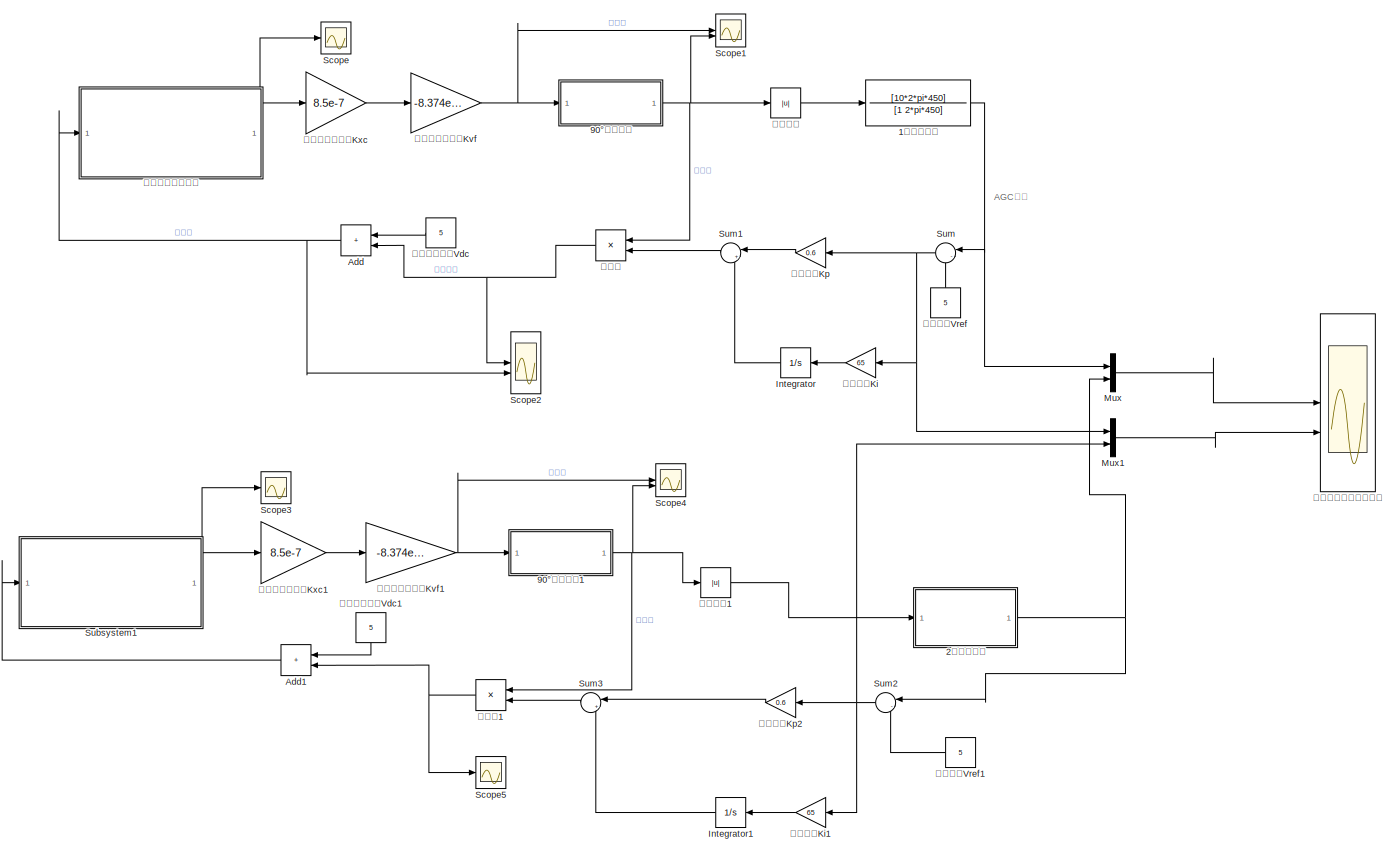
[diagram: root canvas - part 1/2, most of the canvas]
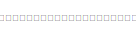
[diagram: root canvas - part 2/2, top left region]
MODEL slx_91cb9d74dd3d
KIND model
CONFIG AbsTol = auto
CONFIG EnableMultiTasking = off
CONFIG FixedStep = auto
CONFIG MaxStep = 1e-5
CONFIG MinStep = auto
CONFIG RelTol = 1e-3
CONFIG SampleTimeConstraint = Unconstrained
CONFIG SolverName = VariableStepAuto
CONFIG StartTime = 0.0
CONFIG StopTime = 3
BLOCK [TransferFcn] 1阶低通滤波
  Denominator = [1 2*pi*450]
  Numerator = [10*2*pi*450]
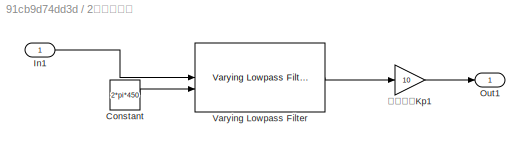
BLOCK [SubSystem] 2阶低通滤波
BLOCK [Constant] 2阶低通滤波/Constant
  Value = 2*pi*450
BLOCK [Inport] 2阶低通滤波/In1
BLOCK [Outport] 2阶低通滤波/Out1
BLOCK [Reference] 2阶低通滤波/Varying Lowpass Filter  REF=cstblocks/Linear Parameter Varying/Varying Lowpass Filter
  SourceBlock = cstblocks/Linear Parameter Varying/Varying Lowpass Filter
  SourceType = Varying Lowpass Filter
BLOCK [Gain] 2阶低通滤波/比例系数Kp1
  Gain = 10
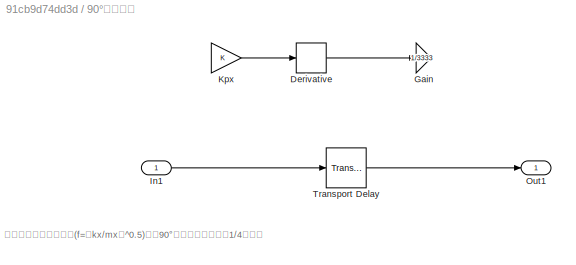
BLOCK [SubSystem] 90°移相模块
BLOCK [Derivative] 90°移相模块/Derivative
  Commented = on
BLOCK [Gain] 90°移相模块/Gain
  Commented = through
  Gain = 1/3333
BLOCK [Inport] 90°移相模块/In1
BLOCK [Gain] 90°移相模块/Kpx
  Commented = on
BLOCK [Outport] 90°移相模块/Out1
BLOCK [TransportDelay] 90°移相模块/Transport Delay
  DelayTime = 1/(3489.44*4)
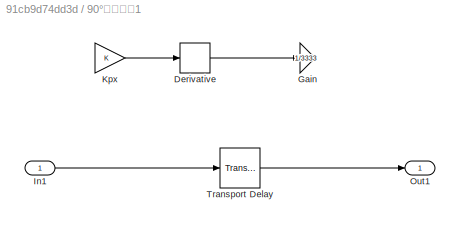
BLOCK [SubSystem] 90°移相模块1
BLOCK [Derivative] 90°移相模块1/Derivative
  Commented = on
BLOCK [Gain] 90°移相模块1/Gain
  Commented = through
  Gain = 1/3333
BLOCK [Inport] 90°移相模块1/In1
BLOCK [Gain] 90°移相模块1/Kpx
  Commented = on
BLOCK [Outport] 90°移相模块1/Out1
BLOCK [TransportDelay] 90°移相模块1/Transport Delay
  DelayTime = 1/(3489.44*4)
BLOCK [Sum] Add
  IconShape = rectangular
  NameLocation = top
BLOCK [Sum] Add1
  IconShape = rectangular
  NameLocation = top
BLOCK [Integrator] Integrator
  NameLocation = top
BLOCK [Integrator] Integrator1
  NameLocation = top
BLOCK [Mux] Mux
  DisplayOption = bar
  Inputs = 2
BLOCK [Mux] Mux1
  DisplayOption = bar
  Inputs = 2
BLOCK [Scope] Scope
  Floating = off
  NumInputPorts = 1
  ScopeSpecificationString = Simulink.scopes.TimeScopeBlockCfg('CurrentConfiguration', extmgr.ConfigurationSet(extmgr.Configuration('Core','General UI',true),extmgr.Configuration('Core','Source UI',true),extmgr.Configuration('Sources','WiredSimulink',true),extmgr.Configuration('Visuals','Time Domain',true,'SerializedDisplays',{struct('MinYLimReal','-0.000005','MaxYLimReal','0.000005','YLabelReal','','MinYLimMag','0.000000','M...<+1439ch>
BLOCK [Scope] Scope1
  Floating = off
  NumInputPorts = 2
  ScopeSpecificationString = Simulink.scopes.TimeScopeBlockCfg('CurrentConfiguration', extmgr.ConfigurationSet(extmgr.Configuration('Core','General UI',true,'FigureColor',[1 1 1]),extmgr.Configuration('Core','Source UI',true),extmgr.Configuration('Sources','WiredSimulink',true,'DataLoggingVariableName','ScopeData1'),extmgr.Configuration('Visuals','Time Domain',true,'SerializedDisplays',{struct('MinYLimReal','-3.68468','MaxYLi...<+2399ch>
BLOCK [Scope] Scope2
  Floating = off
  NumInputPorts = 2
  ScopeSpecificationString = Simulink.scopes.TimeScopeBlockCfg('CurrentConfiguration', extmgr.ConfigurationSet(extmgr.Configuration('Core','General UI',true),extmgr.Configuration('Core','Source UI',true),extmgr.Configuration('Sources','WiredSimulink',true,'DataLoggingVariableName','ScopeData5'),extmgr.Configuration('Visuals','Time Domain',true,'SerializedDisplays',{struct('MinYLimReal','-28.42323','MaxYLimReal','28.33405','YL...<+2134ch>
BLOCK [Scope] Scope3
  Floating = off
  NumInputPorts = 1
  ScopeSpecificationString = Simulink.scopes.TimeScopeBlockCfg('CurrentConfiguration', extmgr.ConfigurationSet(extmgr.Configuration('Core','General UI',true),extmgr.Configuration('Core','Source UI',true),extmgr.Configuration('Sources','WiredSimulink',true,'DataLoggingVariableName','ScopeData3'),extmgr.Configuration('Visuals','Time Domain',true,'SerializedDisplays',{struct('MinYLimReal','-0.0000024','MaxYLimReal','0.0000015','...<+1486ch>
BLOCK [Scope] Scope4
  Floating = off
  NumInputPorts = 2
  ScopeSpecificationString = Simulink.scopes.TimeScopeBlockCfg('CurrentConfiguration', extmgr.ConfigurationSet(extmgr.Configuration('Core','General UI',true,'FigureColor',[1 1 1]),extmgr.Configuration('Core','Source UI',true),extmgr.Configuration('Sources','WiredSimulink',true,'DataLoggingVariableName','ScopeData4'),extmgr.Configuration('Visuals','Time Domain',true,'SerializedDisplays',{struct('MinYLimReal','-1.02296','MaxYLi...<+1705ch>
BLOCK [Scope] Scope5
  Floating = off
  NumInputPorts = 1
  ScopeSpecificationString = Simulink.scopes.TimeScopeBlockCfg('CurrentConfiguration', extmgr.ConfigurationSet(extmgr.Configuration('Core','General UI',true),extmgr.Configuration('Core','Source UI',true),extmgr.Configuration('Sources','WiredSimulink',true,'DataLoggingVariableName','ScopeData6'),extmgr.Configuration('Visuals','Time Domain',true,'SerializedDisplays',{struct('MinYLimReal','-0.000005','MaxYLimReal','0.000005','YL...<+1478ch>
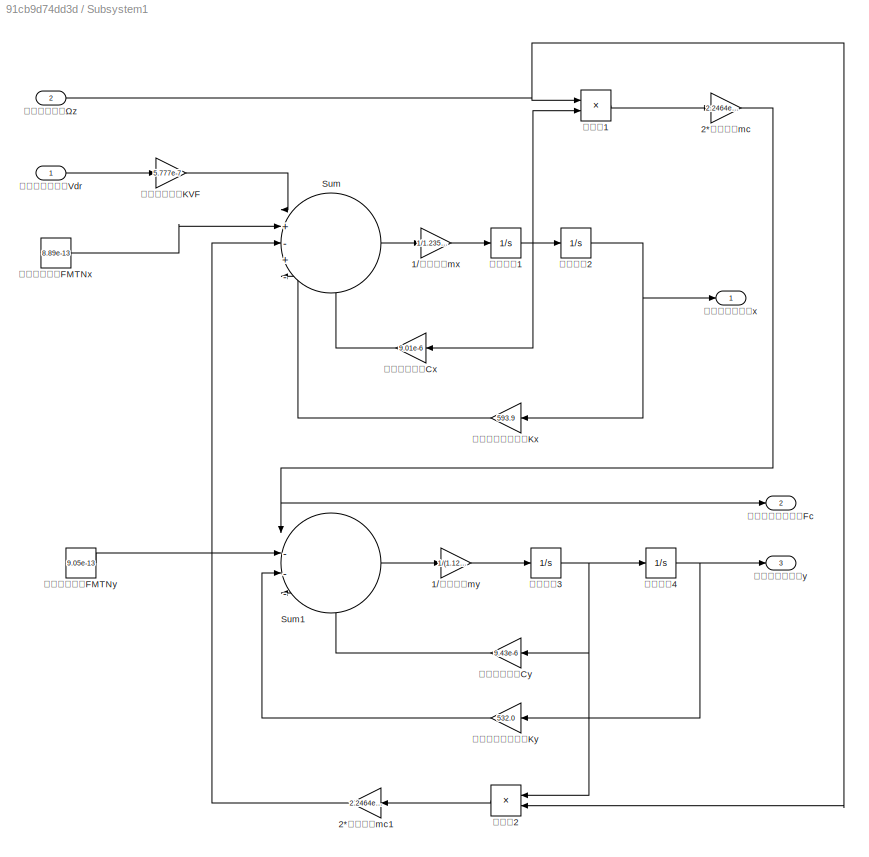
BLOCK [SubSystem] Subsystem1
BLOCK [Gain] Subsystem1/1//检测质量my
  Gain = 1/(1.1232e-6)
BLOCK [Gain] Subsystem1/1//驱动质量mx
  Gain = 1/1.2355e-6
BLOCK [Gain] Subsystem1/2*敏感质量mc
  Gain = 2.2464e-6
BLOCK [Gain] Subsystem1/2*敏感质量mc1
  Gain = 2.2464e-6
  NameLocation = top
BLOCK [Sum] Subsystem1/Sum
  Inputs = |+-+--
BLOCK [Sum] Subsystem1/Sum1
  Inputs = |----
BLOCK [Product] Subsystem1/乘法器1
BLOCK [Product] Subsystem1/乘法器2
  NameLocation = top
BLOCK [Constant] Subsystem1/机械热噪声：FMTNx
  Value = 8.89e-13
BLOCK [Constant] Subsystem1/机械热噪声：FMTNy
  Value = 9.05e-13
BLOCK [Gain] Subsystem1/检测弹性刚度系数Ky
  Gain = 532.0
  NameLocation = top
BLOCK [Gain] Subsystem1/检测阻尼系数Cy
  Gain = 9.43e-6
  NameLocation = top
BLOCK [Integrator] Subsystem1/积分环节1
BLOCK [Integrator] Subsystem1/积分环节2
BLOCK [Integrator] Subsystem1/积分环节3
BLOCK [Integrator] Subsystem1/积分环节4
BLOCK [Inport] Subsystem1/输入：角速度Ωz
  Port = 2
BLOCK [Inport] Subsystem1/输入：驱动电压Vdr
BLOCK [Outport] Subsystem1/输出：哥氏力观测Fc
  Port = 2
BLOCK [Outport] Subsystem1/输出：检测位移y
  Port = 3
BLOCK [Outport] Subsystem1/输出：驱动位移x
BLOCK [Gain] Subsystem1/驱动力矩器：KVF
  Gain = 5.777e-7
BLOCK [Gain] Subsystem1/驱动弹性刚度系数Kx
  Gain = 593.9
  NameLocation = top
BLOCK [Gain] Subsystem1/驱动阻尼系数Cx
  Gain = 9.01e-6
  NameLocation = top
BLOCK [Sum] Sum
  Inputs = |-+
  NameLocation = top
BLOCK [Sum] Sum1
  Inputs = |++
  NameLocation = top
BLOCK [Sum] Sum2
  Inputs = |-+
  NameLocation = top
BLOCK [Sum] Sum3
  Inputs = |++
  NameLocation = top
BLOCK [Scope] 一阶二阶低通滤波对比
  Floating = off
  NumInputPorts = 2
  ScopeSpecificationString = Simulink.scopes.TimeScopeBlockCfg('CurrentConfiguration', extmgr.ConfigurationSet(extmgr.Configuration('Core','General UI',true),extmgr.Configuration('Core','Source UI',true),extmgr.Configuration('Sources','WiredSimulink',true,'DataLoggingVariableName','ScopeData2'),extmgr.Configuration('Visuals','Time Domain',true,'SerializedDisplays',{struct('MinYLimReal','4.97527','MaxYLimReal','5.03143','YLabe...<+2213ch>
BLOCK [Gain] 位移电容转换：Kxc
  Gain = 8.5e-7
BLOCK [Gain] 位移电容转换：Kxc1
  Gain = 8.5e-7
BLOCK [Abs] 全波整流
  SaturateOnIntegerOverflow = off
BLOCK [Abs] 全波整流1
  SaturateOnIntegerOverflow = off
BLOCK [Gain] 比例系数Kp
  Gain = 0.6
  NameLocation = top
BLOCK [Gain] 比例系数Kp2
  Gain = 0.6
  NameLocation = top
BLOCK [Constant] 电压基准Vref
  Value = 5
BLOCK [Constant] 电压基准Vref1
  NameLocation = top
  Value = 5
BLOCK [Gain] 电容电压转换：Kvf
  Gain = -8.374e11
BLOCK [Gain] 电容电压转换：Kvf1
  Gain = -8.374e11
BLOCK [Constant] 直流驱动电压Vdc
  NameLocation = right
  Value = 5
BLOCK [Constant] 直流驱动电压Vdc1
  NameLocation = right
  Value = 5
BLOCK [Gain] 积分系数Ki
  Gain = 65
  NameLocation = top
BLOCK [Gain] 积分系数Ki1
  Gain = 65
  NameLocation = top
BLOCK [Product] 调制器
BLOCK [Product] 调制器1
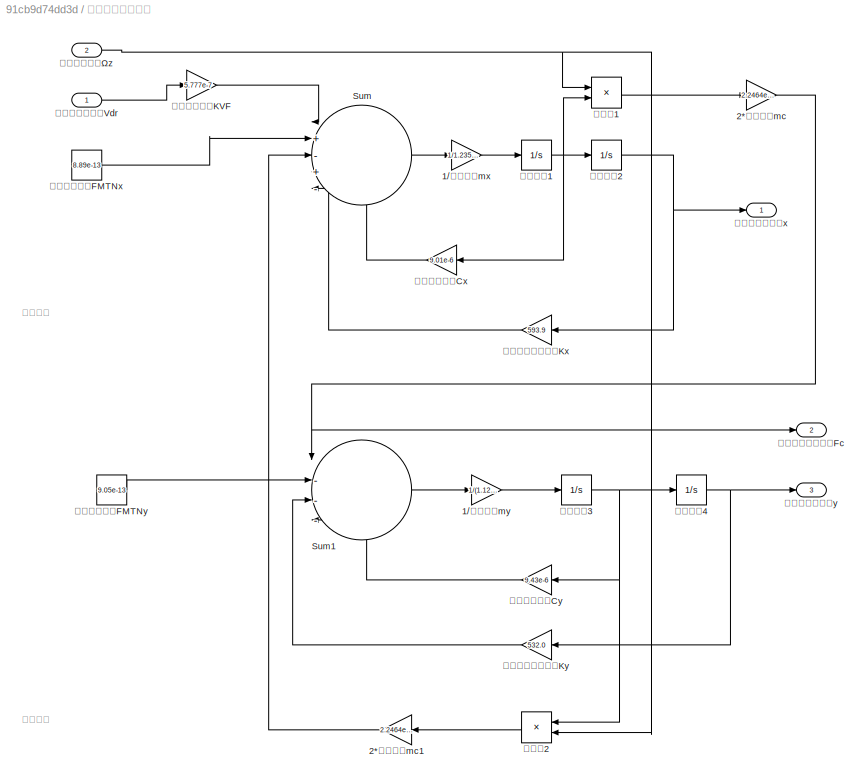
BLOCK [SubSystem] 陀螺结构等效模型
BLOCK [Gain] 陀螺结构等效模型/1//检测质量my
  Gain = 1/(1.1232e-6)
BLOCK [Gain] 陀螺结构等效模型/1//驱动质量mx
  Gain = 1/1.2355e-6
BLOCK [Gain] 陀螺结构等效模型/2*敏感质量mc
  Gain = 2.2464e-6
BLOCK [Gain] 陀螺结构等效模型/2*敏感质量mc1
  Gain = 2.2464e-6
  NameLocation = top
BLOCK [Sum] 陀螺结构等效模型/Sum
  Inputs = |+-+--
BLOCK [Sum] 陀螺结构等效模型/Sum1
  Inputs = |----
BLOCK [Product] 陀螺结构等效模型/乘法器1
BLOCK [Product] 陀螺结构等效模型/乘法器2
  NameLocation = top
BLOCK [Constant] 陀螺结构等效模型/机械热噪声：FMTNx
  Value = 8.89e-13
BLOCK [Constant] 陀螺结构等效模型/机械热噪声：FMTNy
  Value = 9.05e-13
BLOCK [Gain] 陀螺结构等效模型/检测弹性刚度系数Ky
  Gain = 532.0
  NameLocation = top
BLOCK [Gain] 陀螺结构等效模型/检测阻尼系数Cy
  Gain = 9.43e-6
  NameLocation = top
BLOCK [Integrator] 陀螺结构等效模型/积分环节1
BLOCK [Integrator] 陀螺结构等效模型/积分环节2
BLOCK [Integrator] 陀螺结构等效模型/积分环节3
BLOCK [Integrator] 陀螺结构等效模型/积分环节4
BLOCK [Inport] 陀螺结构等效模型/输入：角速度Ωz
  Port = 2
BLOCK [Inport] 陀螺结构等效模型/输入：驱动电压Vdr
BLOCK [Outport] 陀螺结构等效模型/输出：哥氏力观测Fc
  Port = 2
BLOCK [Outport] 陀螺结构等效模型/输出：检测位移y
  Port = 3
BLOCK [Outport] 陀螺结构等效模型/输出：驱动位移x
BLOCK [Gain] 陀螺结构等效模型/驱动力矩器：KVF
  Gain = 5.777e-7
BLOCK [Gain] 陀螺结构等效模型/驱动弹性刚度系数Kx
  Gain = 593.9
  NameLocation = top
BLOCK [Gain] 陀螺结构等效模型/驱动阻尼系数Cx
  Gain = 9.01e-6
  NameLocation = top
ANNOTATION (root): 仿真说明： 参考曹慧亮大论文的陀螺结构仿真
ANNOTATION (root): AGC控制
ANNOTATION 90°移相模块: 针对驱动模态谐振频率(f=（kx/mx）^0.5)进行90°精密移相，即延迟1/4个周期
ANNOTATION 陀螺结构等效模型: 检测模态
ANNOTATION 陀螺结构等效模型: 驱动模态
NET 1阶低通滤波:1 -> Mux:1, Sum:1
LINE 2阶低通滤波/Constant:1 -> 2阶低通滤波/Varying Lowpass Filter:2
LINE 2阶低通滤波/In1:1 -> 2阶低通滤波/Varying Lowpass Filter:1
LINE 2阶低通滤波/Varying Lowpass Filter:1 -> 2阶低通滤波/比例系数Kp1:1
LINE 2阶低通滤波/比例系数Kp1:1 -> 2阶低通滤波/Out1:1
NET 2阶低通滤波:1 -> Mux:2, Sum2:1
LINE 90°移相模块/Derivative:1 -> 90°移相模块/Gain:1
LINE 90°移相模块/In1:1 -> 90°移相模块/Transport Delay:1
LINE 90°移相模块/Kpx:1 -> 90°移相模块/Derivative:1
LINE 90°移相模块/Transport Delay:1 -> 90°移相模块/Out1:1
LINE 90°移相模块1/Derivative:1 -> 90°移相模块1/Gain:1
LINE 90°移相模块1/In1:1 -> 90°移相模块1/Transport Delay:1
LINE 90°移相模块1/Kpx:1 -> 90°移相模块1/Derivative:1
LINE 90°移相模块1/Transport Delay:1 -> 90°移相模块1/Out1:1
NET 90°移相模块1:1 -> Scope4:2, 全波整流1:1, 调制器1:1
NET 90°移相模块:1 -> Scope1:2, 全波整流:1, 调制器:1
LINE Add1:1 -> Subsystem1:1
NET Add:1 -> Scope2:2, 陀螺结构等效模型:1
LINE Integrator1:1 -> Sum3:2
LINE Integrator:1 -> Sum1:2
LINE Mux1:1 -> 一阶二阶低通滤波对比:2
LINE Mux:1 -> 一阶二阶低通滤波对比:1
LINE Subsystem1/1//检测质量my:1 -> Subsystem1/积分环节3:1
LINE Subsystem1/1//驱动质量mx:1 -> Subsystem1/积分环节1:1
LINE Subsystem1/2*敏感质量mc1:1 -> Subsystem1/Sum:3
NET Subsystem1/2*敏感质量mc:1 -> Subsystem1/Sum1:1, Subsystem1/输出：哥氏力观测Fc:1
LINE Subsystem1/Sum1:1 -> Subsystem1/1//检测质量my:1
LINE Subsystem1/Sum:1 -> Subsystem1/1//驱动质量mx:1
LINE Subsystem1/乘法器1:1 -> Subsystem1/2*敏感质量mc:1
LINE Subsystem1/乘法器2:1 -> Subsystem1/2*敏感质量mc1:1
LINE Subsystem1/机械热噪声：FMTNx:1 -> Subsystem1/Sum:2
LINE Subsystem1/机械热噪声：FMTNy:1 -> Subsystem1/Sum1:2
LINE Subsystem1/检测弹性刚度系数Ky:1 -> Subsystem1/Sum1:3
LINE Subsystem1/检测阻尼系数Cy:1 -> Subsystem1/Sum1:4
NET Subsystem1/积分环节1:1 -> Subsystem1/乘法器1:2, Subsystem1/积分环节2:1, Subsystem1/驱动阻尼系数Cx:1
NET Subsystem1/积分环节2:1 -> Subsystem1/输出：驱动位移x:1, Subsystem1/驱动弹性刚度系数Kx:1
NET Subsystem1/积分环节3:1 -> Subsystem1/乘法器2:1, Subsystem1/检测阻尼系数Cy:1, Subsystem1/积分环节4:1
NET Subsystem1/积分环节4:1 -> Subsystem1/检测弹性刚度系数Ky:1, Subsystem1/输出：检测位移y:1
NET Subsystem1/输入：角速度Ωz:1 -> Subsystem1/乘法器1:1, Subsystem1/乘法器2:2
LINE Subsystem1/输入：驱动电压Vdr:1 -> Subsystem1/驱动力矩器：KVF:1
LINE Subsystem1/驱动力矩器：KVF:1 -> Subsystem1/Sum:1
LINE Subsystem1/驱动弹性刚度系数Kx:1 -> Subsystem1/Sum:4
LINE Subsystem1/驱动阻尼系数Cx:1 -> Subsystem1/Sum:5
NET Subsystem1:1 -> Scope3:1, 位移电容转换：Kxc1:1
LINE Sum1:1 -> 调制器:2
NET Sum2:1 -> Mux1:2, 比例系数Kp2:1, 积分系数Ki1:1
LINE Sum3:1 -> 调制器1:2
NET Sum:1 -> Mux1:1, 比例系数Kp:1, 积分系数Ki:1
LINE 位移电容转换：Kxc1:1 -> 电容电压转换：Kvf1:1
LINE 位移电容转换：Kxc:1 -> 电容电压转换：Kvf:1
LINE 全波整流1:1 -> 2阶低通滤波:1
LINE 全波整流:1 -> 1阶低通滤波:1
LINE 比例系数Kp2:1 -> Sum3:1
LINE 比例系数Kp:1 -> Sum1:1
LINE 电压基准Vref1:1 -> Sum2:2
LINE 电压基准Vref:1 -> Sum:2
NET 电容电压转换：Kvf1:1 -> 90°移相模块1:1, Scope4:1
NET 电容电压转换：Kvf:1 -> 90°移相模块:1, Scope1:1
LINE 直流驱动电压Vdc1:1 -> Add1:1
LINE 直流驱动电压Vdc:1 -> Add:1
LINE 积分系数Ki1:1 -> Integrator1:1
LINE 积分系数Ki:1 -> Integrator:1
NET 调制器1:1 -> Add1:2, Scope5:1
NET 调制器:1 -> Add:2, Scope2:1
LINE 陀螺结构等效模型/1//检测质量my:1 -> 陀螺结构等效模型/积分环节3:1
LINE 陀螺结构等效模型/1//驱动质量mx:1 -> 陀螺结构等效模型/积分环节1:1
LINE 陀螺结构等效模型/2*敏感质量mc1:1 -> 陀螺结构等效模型/Sum:3
NET 陀螺结构等效模型/2*敏感质量mc:1 -> 陀螺结构等效模型/Sum1:1, 陀螺结构等效模型/输出：哥氏力观测Fc:1
LINE 陀螺结构等效模型/Sum1:1 -> 陀螺结构等效模型/1//检测质量my:1
LINE 陀螺结构等效模型/Sum:1 -> 陀螺结构等效模型/1//驱动质量mx:1
LINE 陀螺结构等效模型/乘法器1:1 -> 陀螺结构等效模型/2*敏感质量mc:1
LINE 陀螺结构等效模型/乘法器2:1 -> 陀螺结构等效模型/2*敏感质量mc1:1
LINE 陀螺结构等效模型/机械热噪声：FMTNx:1 -> 陀螺结构等效模型/Sum:2
LINE 陀螺结构等效模型/机械热噪声：FMTNy:1 -> 陀螺结构等效模型/Sum1:2
LINE 陀螺结构等效模型/检测弹性刚度系数Ky:1 -> 陀螺结构等效模型/Sum1:3
LINE 陀螺结构等效模型/检测阻尼系数Cy:1 -> 陀螺结构等效模型/Sum1:4
NET 陀螺结构等效模型/积分环节1:1 -> 陀螺结构等效模型/乘法器1:2, 陀螺结构等效模型/积分环节2:1, 陀螺结构等效模型/驱动阻尼系数Cx:1
NET 陀螺结构等效模型/积分环节2:1 -> 陀螺结构等效模型/输出：驱动位移x:1, 陀螺结构等效模型/驱动弹性刚度系数Kx:1
NET 陀螺结构等效模型/积分环节3:1 -> 陀螺结构等效模型/乘法器2:1, 陀螺结构等效模型/检测阻尼系数Cy:1, 陀螺结构等效模型/积分环节4:1
NET 陀螺结构等效模型/积分环节4:1 -> 陀螺结构等效模型/检测弹性刚度系数Ky:1, 陀螺结构等效模型/输出：检测位移y:1
NET 陀螺结构等效模型/输入：角速度Ωz:1 -> 陀螺结构等效模型/乘法器1:1, 陀螺结构等效模型/乘法器2:2
LINE 陀螺结构等效模型/输入：驱动电压Vdr:1 -> 陀螺结构等效模型/驱动力矩器：KVF:1
LINE 陀螺结构等效模型/驱动力矩器：KVF:1 -> 陀螺结构等效模型/Sum:1
LINE 陀螺结构等效模型/驱动弹性刚度系数Kx:1 -> 陀螺结构等效模型/Sum:4
LINE 陀螺结构等效模型/驱动阻尼系数Cx:1 -> 陀螺结构等效模型/Sum:5
NET 陀螺结构等效模型:1 -> Scope:1, 位移电容转换：Kxc:1
note: NET lines group one-source signal fan-out (src -> all destinations, sorted); 1:1 wires keep LINE
